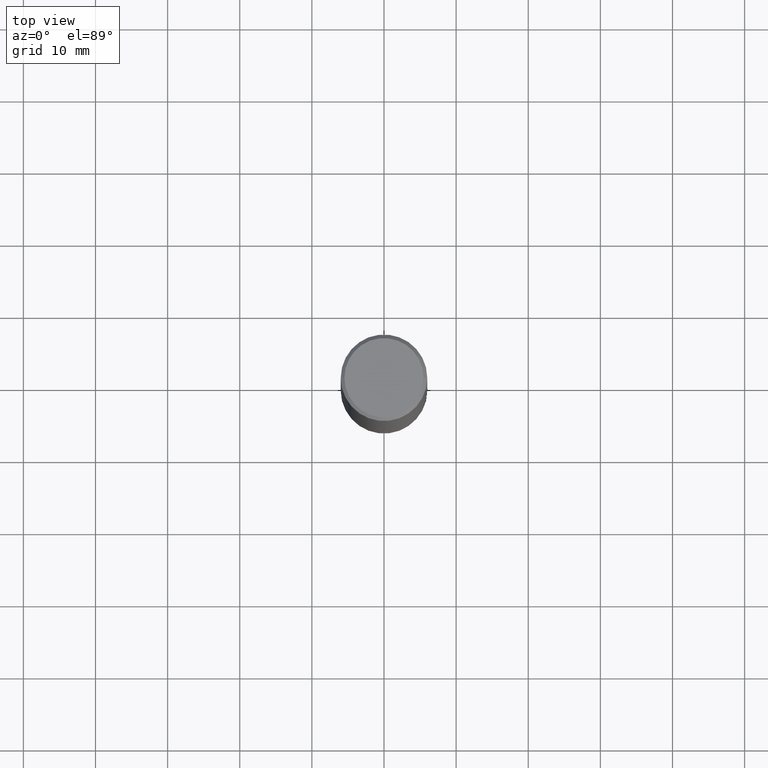
[diagram: clean part render]
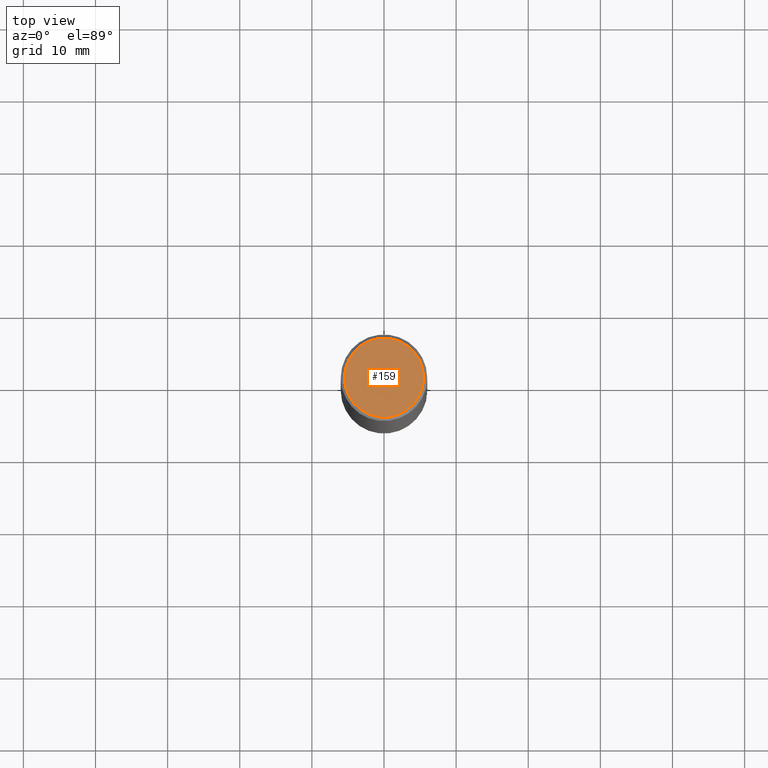
[diagram: same view with one face highlighted and labeled with its STEP entity id]
A machine part, top view. The second image highlights one B-rep face of the part: STEP entity #159.
In plain terms, the highlighted planar face has unit normal (0, -0, -1).
Its self-contained STEP definition (entity closure, byte-faithful):
#4 = AXIS2_PLACEMENT_3D ( 'NONE', #34, #172, #227 ) ;
#6 = CARTESIAN_POINT ( 'NONE',  ( 1.509716530915769140E-15, 0.2161999999999997535, -7.527240092128371176E-16 ) ) ;
#9 = PLANE ( 'NONE',  #249 ) ;
#18 = CARTESIAN_POINT ( 'NONE',  ( 0.2161999999999997535, -1.586759460484350410E-15, 4.268512490111238857E-18 ) ) ;
#22 = ORIENTED_EDGE ( 'NONE', *, *, #304, .T. ) ;
#34 = CARTESIAN_POINT ( 'NONE',  ( -1.043851414335219820E-46, 1.490343170380447200E-32, 4.268512490100411279E-18 ) ) ;
#43 = CIRCLE ( 'NONE', #348, 0.2161999999999997535 ) ;
#69 = VERTEX_POINT ( 'NONE', #314 ) ;
#99 = CARTESIAN_POINT ( 'NONE',  ( -1.043851414335219820E-46, 1.490343170380447200E-32, 4.268512490100411279E-18 ) ) ;
#104 = DIRECTION ( 'NONE',  ( -2.445468806185136597E-29, 3.491481338843145583E-15, 1.000000000000000000 ) ) ;
#119 = CIRCLE ( 'NONE', #4, 0.2161999999999997535 ) ;
#144 = FACE_OUTER_BOUND ( 'NONE', #153, .T. ) ;
#153 = EDGE_LOOP ( 'NONE', ( #202, #22 ) ) ;
#159 = ADVANCED_FACE ( 'NONE', ( #144 ), #9, .F. ) ;
#172 = DIRECTION ( 'NONE',  ( -2.445468806185136597E-29, 3.491481338843145583E-15, 1.000000000000000000 ) ) ;
#187 = EDGE_CURVE ( 'NONE', #69, #330, #119, .T. ) ;
#196 = DIRECTION ( 'NONE',  ( 2.438088387897960049E-29, -3.491481338843145188E-15, -1.000000000000000000 ) ) ;
#202 = ORIENTED_EDGE ( 'NONE', *, *, #187, .T. ) ;
#227 = DIRECTION ( 'NONE',  ( 1.000000000000000000, -6.982962677686267499E-15, 4.876217060660161280E-29 ) ) ;
#234 = DIRECTION ( 'NONE',  ( 1.000000000000000000, -6.982962677686267499E-15, 4.876217060660161280E-29 ) ) ;
#248 = DIRECTION ( 'NONE',  ( -1.000000000000000000, 6.982962677686265922E-15, -4.876176775795935793E-29 ) ) ;
#249 = AXIS2_PLACEMENT_3D ( 'NONE', #6, #196, #248 ) ;
#304 = EDGE_CURVE ( 'NONE', #330, #69, #43, .T. ) ;
#314 = CARTESIAN_POINT ( 'NONE',  ( -0.2161999999999997535, 1.544631344304200395E-15, 4.268512490089730842E-18 ) ) ;
#330 = VERTEX_POINT ( 'NONE', #18 ) ;
#348 = AXIS2_PLACEMENT_3D ( 'NONE', #99, #104, #234 ) ;